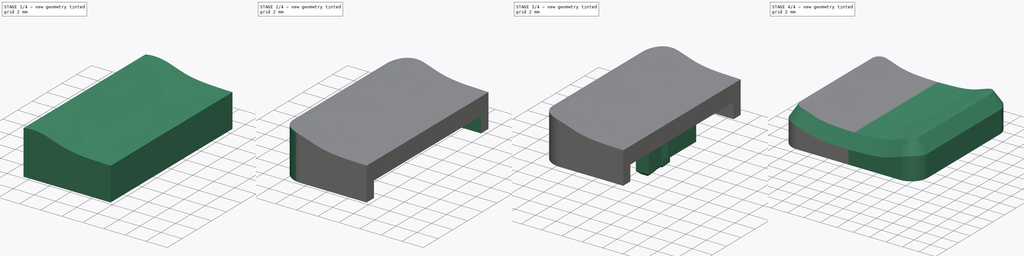
[diagram: build sequence overview — one tinted view per stage of 4, left to right]
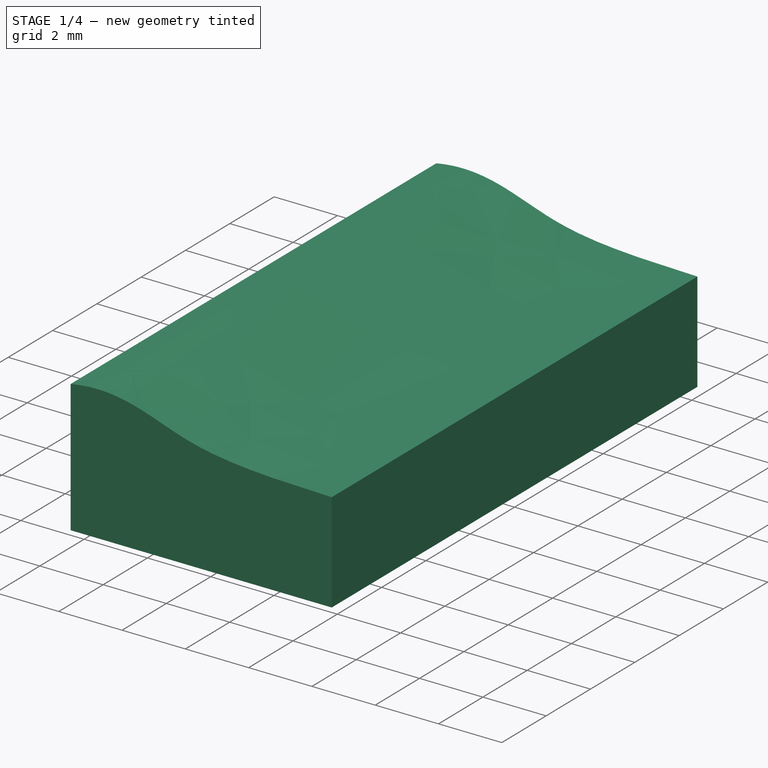
[diagram: stage 1 of 4 — iso view after this stage's code; geometry added in this stage tinted green]
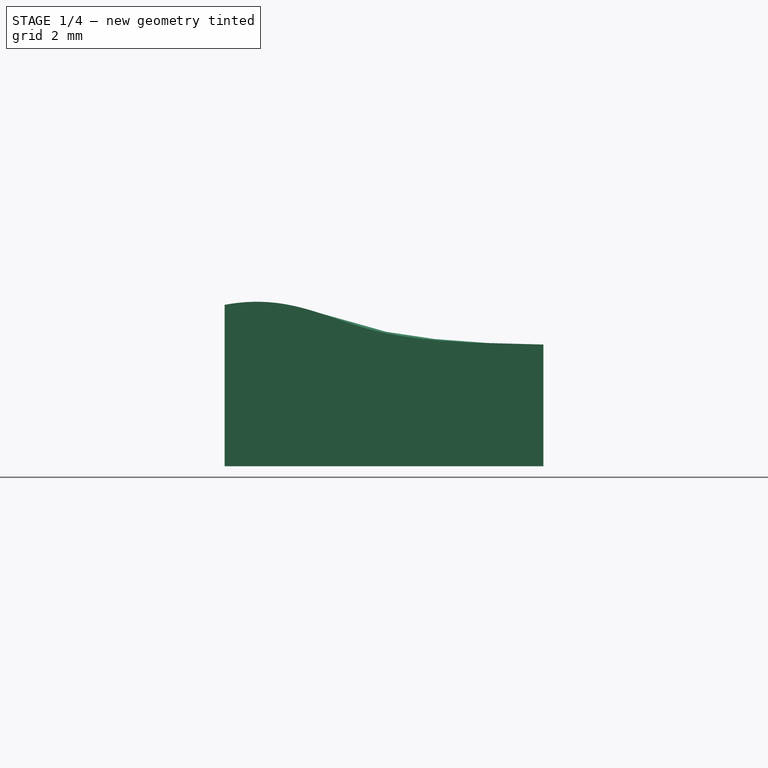
[diagram: stage 1 of 4 — front view after this stage's code; geometry added in this stage tinted green]
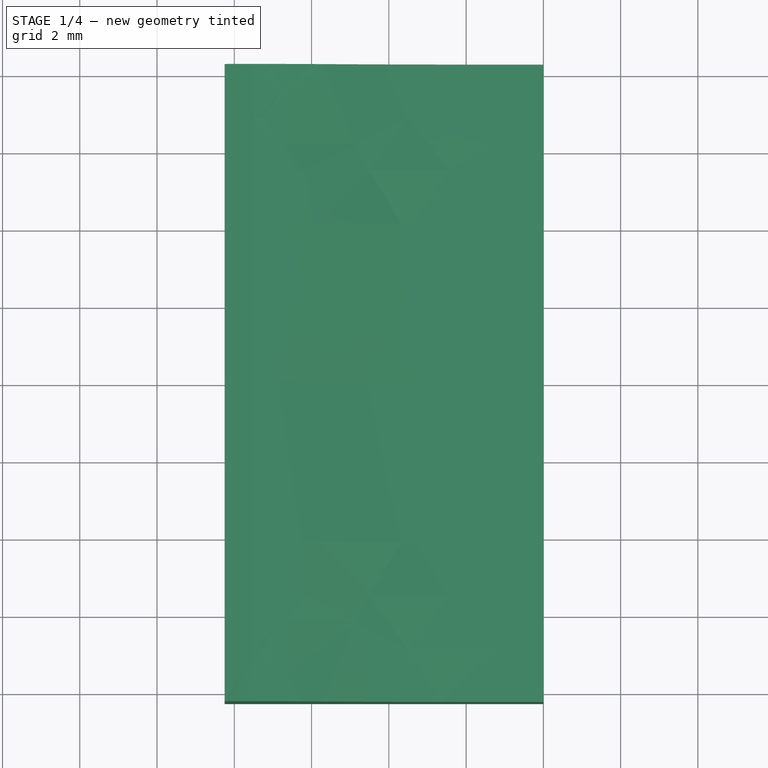
[diagram: stage 1 of 4 — top view after this stage's code; geometry added in this stage tinted green]
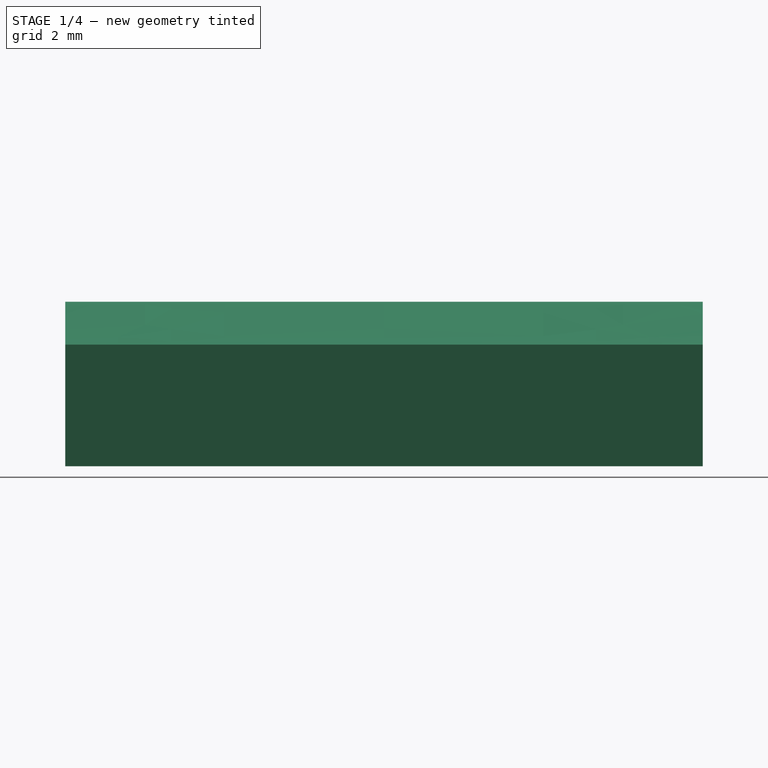
[diagram: stage 1 of 4 — right view after this stage's code; geometry added in this stage tinted green]
FCSTD DOCUMENT  (FreeCAD 0.21R33771 (Git))
Label: PLASTIC-LOW-PROFILE-KEYCAP
License: All rights reserved
LicenseURL: https://en.wikipedia.org/wiki/All_rights_reserved
objects: Sketcher::SketchObject×8, PartDesign::Pad×4, PartDesign::Pocket×2, PartDesign::Chamfer×2, PartDesign::Mirrored×1, PartDesign::Body×1
note: 26 computed .brp shape members not serialized (recipe doc carries the construction recipe); baked Part::Feature solids carry a one-line shape summary decoded from their .brp

FEATURE [Sketcher::SketchObject] Sketch
  FullyConstrained = true
  MapMode = 5
  Support = -> [XY_Plane]
  sketch-geometry (5):
    g0: LineSegment StartX=-8.25 StartY=-8.25 StartZ=0 EndX=-8.25 EndY=8.25 EndZ=0
    g1: LineSegment StartX=-8.25 StartY=8.25 StartZ=0 EndX=0 EndY=8.25 EndZ=0
    g2: LineSegment StartX=0 StartY=-8.25 StartZ=0 EndX=-8.25 EndY=-8.25 EndZ=0
    g3: GeomPoint X=0 Y=-1e-16 Z=0
    g4: LineSegment StartX=0 StartY=8.25 StartZ=0 EndX=0 EndY=-8.25 EndZ=0
  constraints (12):
    c: Horizontal(g2)
    c: Vertical(g0)
    c: Coincident(g3,g-1)
    c: Vertical(g4)
    c: Coincident(g1,g4)
    c: Coincident(g2,g4)
    c: Horizontal(g1)
    c: Symmetric(g2,g1,g3)
    c: DistanceY(g4,g4) = 16.5
    c: DistanceX(g0,g1) = 8.25
    c: Coincident(g0,g2)
    c: Coincident(g0,g1)
FEATURE [PartDesign::Pad] Pad
  Direction = (0,0,1)
  Length = 2.85
  Length2 = 10
  Profile = -> Sketch
  ReferenceAxis = -> Sketch [N_Axis]
  Refine = true
  Type = 0
FEATURE [Sketcher::SketchObject] Sketch001
  FullyConstrained = false
  MapMode = 5
  Placement = pos=(0,0,0) rot=(1,0,0;1.5708rad)
  Support = -> [XZ_Plane]
  sketch-geometry (12):
    g0: LineSegment StartX=-8.25 StartY=2.85 StartZ=0 EndX=0 EndY=2.85 EndZ=0
    g1: LineSegment StartX=0 StartY=3.15 StartZ=0 EndX=0 EndY=2.85 EndZ=0
    g2: LineSegment StartX=-8.25 StartY=2.85 StartZ=0 EndX=-8.25 EndY=4.17799 EndZ=0
    g3-g7: Circle x5 (B-spline internal-alignment scaffolding for g8; pole/knot coordinates omitted)
    g8: BSplineCurve PolesCount=5 KnotsCount=3 Degree=3 IsPeriodic=0
    g9: GeomPoint X=0 Y=3.15 Z=0
    g10: GeomPoint X=-4.57867 Y=3.56599 Z=0
    g11: GeomPoint X=-8.25 Y=4.17799 Z=0
  constraints (17):
    c: Horizontal(g0)
    c: PointOnObject(g0,g-2)
    c: DistanceY(g-1,g0) = 2.85
    c: DistanceX(g0,g0) = 8.25
    c: PointOnObject(g1,g-2)
    c: Coincident(g1,g0)
    c: Coincident(g2,g0)
    c: Vertical(g2)
    c: DistanceY(g1,g1) = 0.3
    c: Weight(g3) = 1
    c: Coincident(g8,g1)
    c: Equal(g3, g4-g7) x4
    c: Coincident(g8,g2)
    c: InternalAlignment(g3-g7 -> g8) x5
    c: InternalAlignment(g9,g8)
    c: InternalAlignment(g10,g8)
    c: InternalAlignment(g11,g8)
FEATURE [PartDesign::Pad] Pad001
  BaseFeature = -> Pad
  Direction = (0,-1,-2e-16)
  Length = 16.5
  Length2 = 10
  Midplane = true
  Profile = -> Sketch001
  ReferenceAxis = -> Sketch001 [N_Axis]
  Refine = true
  Type = 0
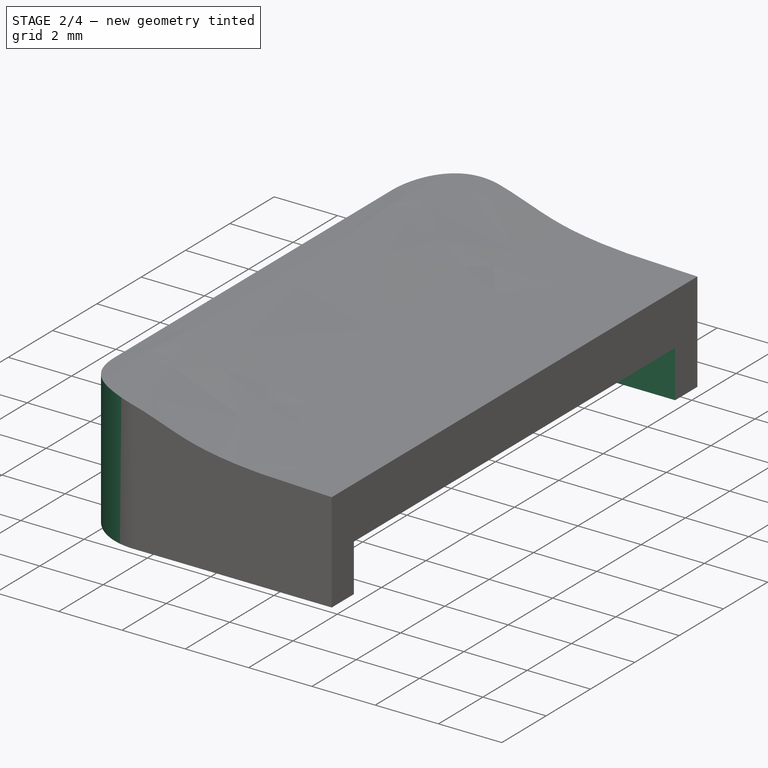
[diagram: stage 2 of 4 — iso view after this stage's code; geometry added in this stage tinted green]
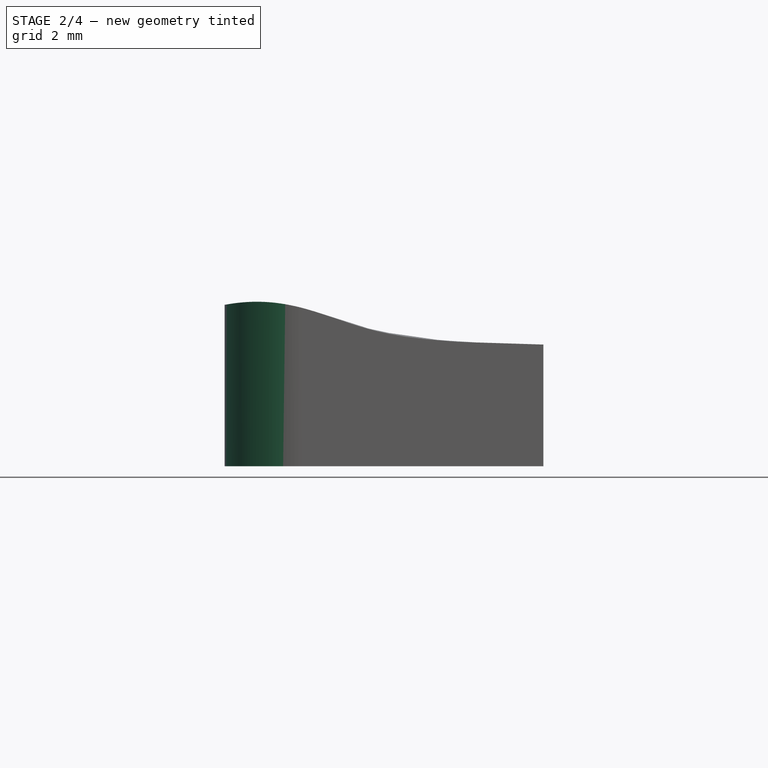
[diagram: stage 2 of 4 — front view after this stage's code; geometry added in this stage tinted green]
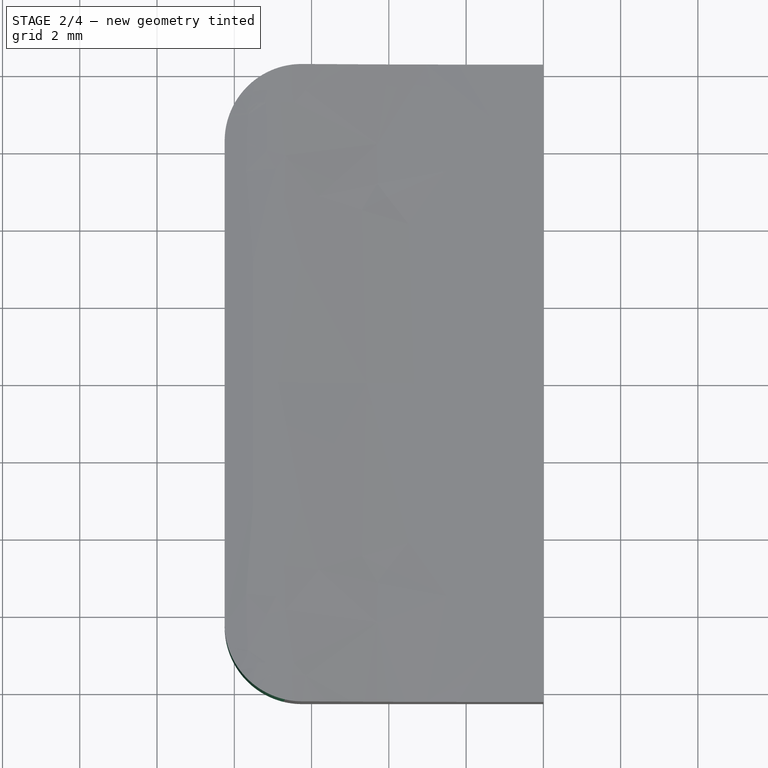
[diagram: stage 2 of 4 — top view after this stage's code; geometry added in this stage tinted green]
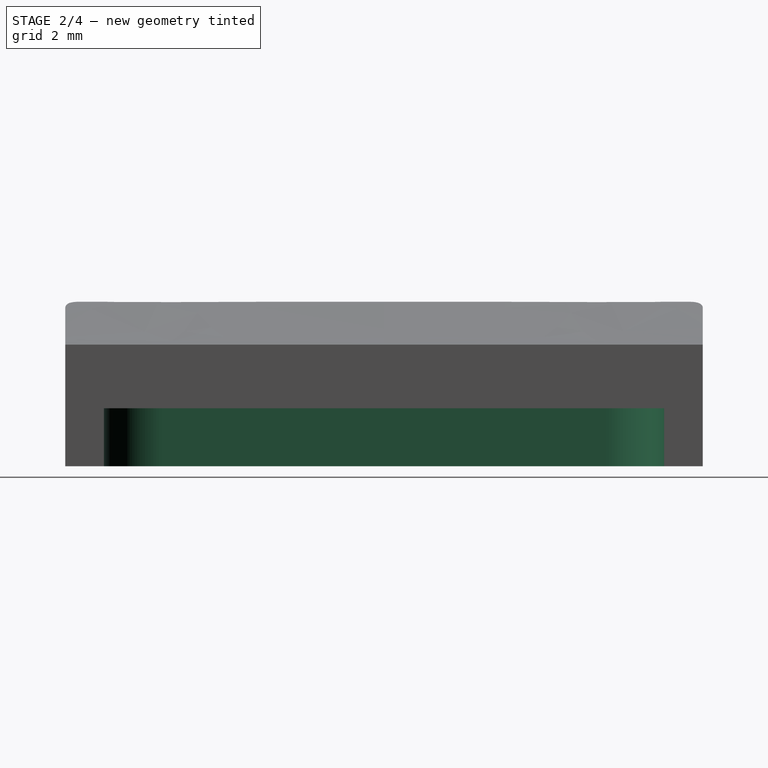
[diagram: stage 2 of 4 — right view after this stage's code; geometry added in this stage tinted green]
FEATURE [Sketcher::SketchObject] Sketch002
  FullyConstrained = true
  MapMode = 5
  Support = -> [XY_Plane]
  sketch-geometry (14):
    g0: LineSegment StartX=0 StartY=8.25 StartZ=0 EndX=-6.25 EndY=8.25 EndZ=0
    g1: LineSegment StartX=-8.25 StartY=6.25 StartZ=0 EndX=-8.25 EndY=-6.25 EndZ=0
    g2: LineSegment StartX=-6.25 StartY=-8.25 StartZ=0 EndX=0 EndY=-8.25 EndZ=0
    g3: LineSegment StartX=0 StartY=-8.25 StartZ=0 EndX=0 EndY=8.25 EndZ=0
    g4: ArcOfCircle CenterX=-6.25 CenterY=6.25 CenterZ=0 NormalX=0 NormalY=0 NormalZ=1 AngleXU=0 Radius=2 StartAngle=1.5708 EndAngle=3.14159
    g5: ArcOfCircle CenterX=-6.25 CenterY=-6.25 CenterZ=0 NormalX=0 NormalY=0 NormalZ=1 AngleXU=0 Radius=2 StartAngle=3.14159 EndAngle=4.71239
    g6: LineSegment StartX=-6.25 StartY=8.25 StartZ=0 EndX=-6.25 EndY=9.25 EndZ=0
    g7: LineSegment StartX=-8.25 StartY=6.25 StartZ=0 EndX=-9.25 EndY=6.25 EndZ=0
    g8: LineSegment StartX=-9.25 StartY=6.25 StartZ=0 EndX=-9.25 EndY=9.25 EndZ=0
    g9: LineSegment StartX=-9.25 StartY=9.25 StartZ=0 EndX=-6.25 EndY=9.25 EndZ=0
    g10: LineSegment StartX=-8.25 StartY=-6.25 StartZ=0 EndX=-9.25 EndY=-6.25 EndZ=0
    g11: LineSegment StartX=-6.25 StartY=-8.25 StartZ=0 EndX=-6.25 EndY=-9.25 EndZ=0
    g12: LineSegment StartX=-9.25 StartY=-6.25 StartZ=0 EndX=-9.25 EndY=-9.25 EndZ=0
    g13: LineSegment StartX=-9.25 StartY=-9.25 StartZ=0 EndX=-6.25 EndY=-9.25 EndZ=0
  constraints (37):
    c: Coincident(g2,g3)
    c: Coincident(g3,g0)
    c: Horizontal(g0)
    c: Horizontal(g2)
    c: Vertical(g1)
    c: Vertical(g3)
    c: Symmetric(g0,g2,g-1)
    c: Tangent(g0,g4) = -1.5708
    c: Tangent(g1,g4) = -1.5708
    c: Tangent(g1,g5) = -1.5708
    c: Tangent(g2,g5) = -1.5708
    c: Equal(g4,g5)
    c: Diameter(g4) = 4
    c: DistanceY(g3,g3) = 16.5
    c: DistanceX(g1,g0) = 8.25
    c: Coincident(g6,g4)
    c: Coincident(g7,g4)
    c: Coincident(g8,g7)
    c: Vertical(g8)
    c: Coincident(g9,g8)
    c: Coincident(g9,g6)
    c: Coincident(g10,g5)
    c: Horizontal(g10)
    c: Coincident(g11,g5)
    c: Coincident(g12,g10)
    c: Vertical(g12)
    c: Coincident(g13,g11)
    c: Horizontal(g13)
    c: Coincident(g12,g13)
    c: Vertical(g11)
    c: Horizontal(g9)
    c: Vertical(g6)
    c: Horizontal(g7)
    c: Equal(g6,g7)
    c: Equal(g7,g11)
    c: Equal(g11,g10)
    c: DistanceX(g7,g7) = 1
FEATURE [PartDesign::Pocket] Pocket
  BaseFeature = -> Pad001
  Direction = (0,0,-1)
  Length = 5
  Length2 = 5
  Profile = -> Sketch002
  ReferenceAxis = -> Sketch002 [N_Axis]
  Refine = true
  Reversed = true
  Type = 0
FEATURE [Sketcher::SketchObject] Sketch003
  FullyConstrained = true
  MapMode = 5
  Support = -> [XY_Plane]
  sketch-geometry (7):
    g0: LineSegment StartX=0 StartY=7.25 StartZ=0 EndX=-5.75 EndY=7.25 EndZ=0
    g1: LineSegment StartX=-7.25 StartY=5.75 StartZ=0 EndX=-7.25 EndY=-5.75 EndZ=0
    g2: LineSegment StartX=-5.75 StartY=-7.25 StartZ=0 EndX=0 EndY=-7.25 EndZ=0
    g3: LineSegment StartX=0 StartY=-7.25 StartZ=0 EndX=0 EndY=0 EndZ=0
    g4: ArcOfCircle CenterX=-5.75 CenterY=5.75 CenterZ=0 NormalX=0 NormalY=0 NormalZ=1 AngleXU=0 Radius=1.5 StartAngle=1.5708 EndAngle=3.14159
    g5: ArcOfCircle CenterX=-5.75 CenterY=-5.75 CenterZ=0 NormalX=0 NormalY=0 NormalZ=1 AngleXU=0 Radius=1.5 StartAngle=3.14159 EndAngle=4.71239
    g6: LineSegment StartX=0 StartY=0 StartZ=0 EndX=0 EndY=7.25 EndZ=0
  constraints (17):
    c: Coincident(g2,g3)
    c: Coincident(g6,g0)
    c: Horizontal(g0)
    c: Horizontal(g2)
    c: Vertical(g1)
    c: Vertical(g3)
    c: Symmetric(g0,g2,g-1)
    c: Tangent(g0,g4) = -1.5708
    c: Tangent(g1,g4) = -1.5708
    c: Tangent(g1,g5) = -1.5708
    c: Tangent(g2,g5) = -1.5708
    c: Equal(g4,g5)
    c: Diameter(g4) = 3
    c: DistanceX(g1,g0) = 7.25
    c: DistanceY(g3,g6) = 14.5
    c: Coincident(g3,g6)
    c: Coincident(g3,g-1)
FEATURE [PartDesign::Pocket] Pocket001
  BaseFeature = -> Pocket
  Direction = (0,0,-1)
  Length = 1.5
  Length2 = 5
  Profile = -> Sketch003
  ReferenceAxis = -> Sketch003 [N_Axis]
  Reversed = true
  Type = 0
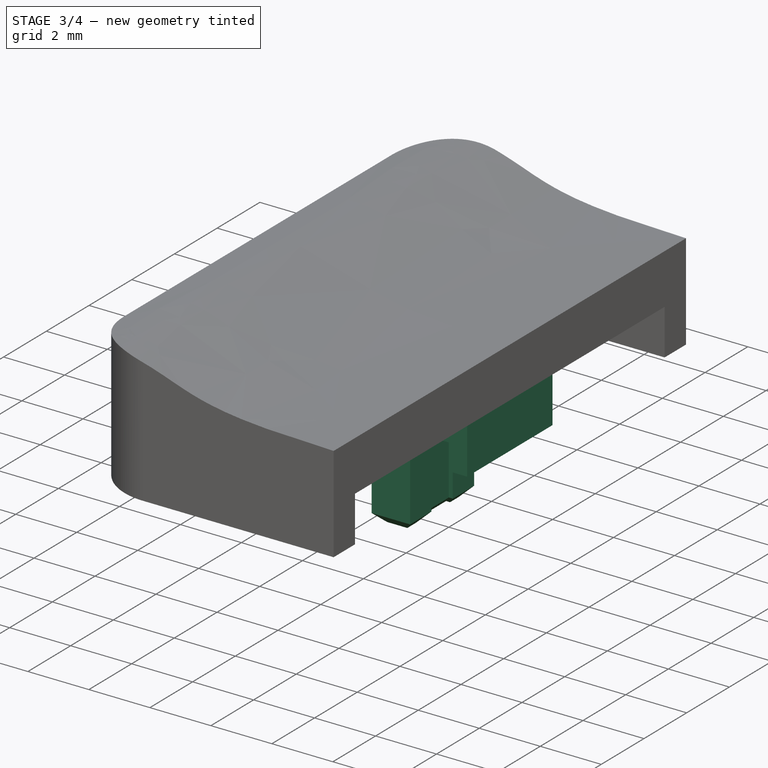
[diagram: stage 3 of 4 — iso view after this stage's code; geometry added in this stage tinted green]
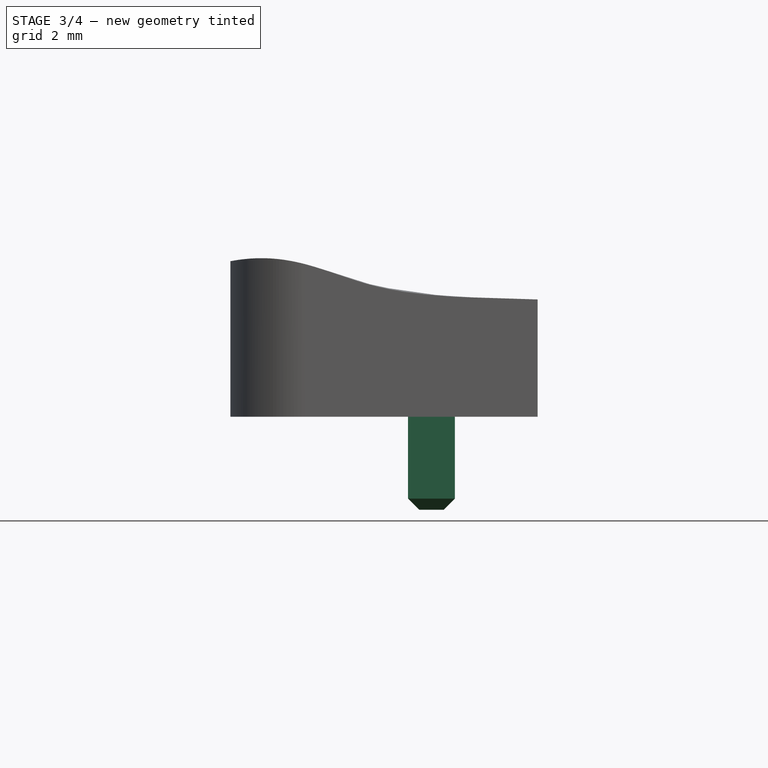
[diagram: stage 3 of 4 — front view after this stage's code; geometry added in this stage tinted green]
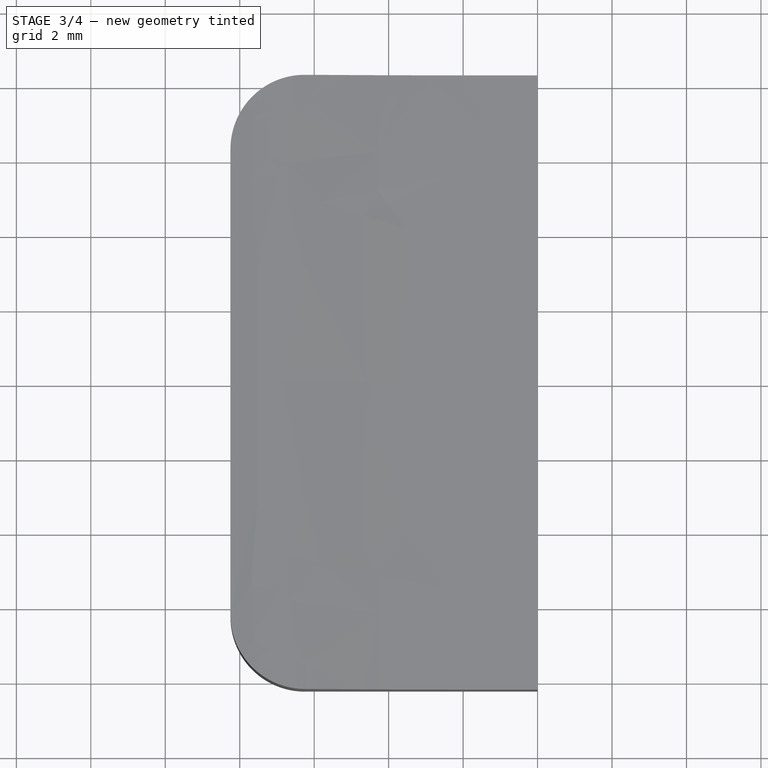
[diagram: stage 3 of 4 — top view after this stage's code; geometry added in this stage tinted green]
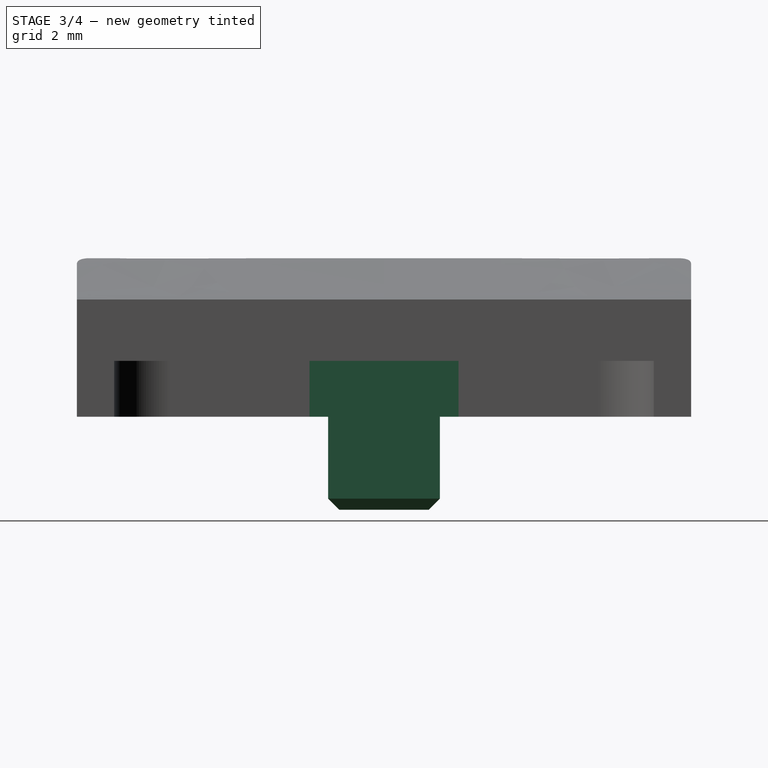
[diagram: stage 3 of 4 — right view after this stage's code; geometry added in this stage tinted green]
FEATURE [Sketcher::SketchObject] Sketch004
  FullyConstrained = true
  MapMode = 5
  Support = -> [XY_Plane]
  sketch-geometry (12):
    g0: LineSegment StartX=0 StartY=-2 StartZ=0 EndX=-0.5 EndY=-2 EndZ=0
    g1: LineSegment StartX=-0.5 StartY=-2 StartZ=0 EndX=-0.5 EndY=-0.5 EndZ=0
    g2: LineSegment StartX=-0.5 StartY=2 StartZ=0 EndX=0 EndY=2 EndZ=0
    g3: LineSegment StartX=0 StartY=2 StartZ=0 EndX=0 EndY=-2 EndZ=0
    g4: LineSegment StartX=-3.5 StartY=-2 StartZ=0 EndX=-4.5 EndY=-2 EndZ=0
    g5: LineSegment StartX=-4.5 StartY=-2 StartZ=0 EndX=-4.5 EndY=2 EndZ=0
    g6: LineSegment StartX=-4.5 StartY=2 StartZ=0 EndX=-3.5 EndY=2 EndZ=0
    g7: LineSegment StartX=-3.5 StartY=2 StartZ=0 EndX=-3.5 EndY=0.5 EndZ=0
    g8: LineSegment StartX=-3.5 StartY=-0.5 StartZ=0 EndX=-0.5 EndY=-0.5 EndZ=0
    g9: LineSegment StartX=-3.5 StartY=0.5 StartZ=0 EndX=-0.5 EndY=0.5 EndZ=0
    g10: LineSegment StartX=-3.5 StartY=-0.5 StartZ=0 EndX=-3.5 EndY=-2 EndZ=0
    g11: LineSegment StartX=-0.5 StartY=0.5 StartZ=0 EndX=-0.5 EndY=2 EndZ=0
  constraints (34):
    c: Coincident(g0,g1)
    c: Coincident(g11,g2)
    c: Coincident(g2,g3)
    c: Coincident(g3,g0)
    c: Horizontal(g0)
    c: Horizontal(g2)
    c: Vertical(g1)
    c: Vertical(g3)
    c: Coincident(g4,g5)
    c: Coincident(g5,g6)
    c: Coincident(g6,g7)
    c: Coincident(g10,g4)
    c: Horizontal(g4)
    c: Horizontal(g6)
    c: Vertical(g5)
    c: Vertical(g7)
    c: Horizontal(g4,g0)
    c: Symmetric(g0,g2,g-1)
    c: Horizontal(g8)
    c: Horizontal(g9)
    c: Coincident(g7,g9)
    c: Coincident(g10,g8)
    c: Coincident(g1,g8)
    c: Coincident(g11,g9)
    c: DistanceX(g0,g0) = 0.5
    c: Vertical(g9,g1)
    c: Vertical(g11)
    c: DistanceX(g4,g4) = 1
    c: Vertical(g10)
    c: DistanceY(g8,g7) = 1
    c: Symmetric(g8,g7,g-1)
    c: DistanceX(g4,g-1) = 4.5
    c: Horizontal(g6,g2)
    c: DistanceY(g5,g5) = 4
FEATURE [PartDesign::Pad] Pad002
  BaseFeature = -> Pocket001
  Direction = (0,0,1)
  Length = 10
  Length2 = 10
  Profile = -> Sketch004
  ReferenceAxis = -> Sketch004 [N_Axis]
  Type = 2
FEATURE [Sketcher::SketchObject] Sketch005
  FullyConstrained = true
  MapMode = 5
  Support = -> [XY_Plane]
  sketch-geometry (13):
    g0: LineSegment StartX=-2.22 StartY=-1.5 StartZ=0 EndX=-3.48 EndY=-1.5 EndZ=0
    g1: LineSegment StartX=-3.48 StartY=-1.5 StartZ=0 EndX=-3.48 EndY=-0.5 EndZ=0
    g2: LineSegment StartX=-3.48 StartY=-0.5 StartZ=0 EndX=-3.35 EndY=-0.5 EndZ=0
    g3: LineSegment StartX=-2.22 StartY=-0.5 StartZ=0 EndX=-2.22 EndY=-1.5 EndZ=0
    g4: LineSegment StartX=-2.22 StartY=0.5 StartZ=0 EndX=-2.35 EndY=0.5 EndZ=0
    g5: LineSegment StartX=-3.48 StartY=0.5 StartZ=0 EndX=-3.48 EndY=1.5 EndZ=0
    g6: LineSegment StartX=-3.48 StartY=1.5 StartZ=0 EndX=-2.22 EndY=1.5 EndZ=0
    g7: LineSegment StartX=-2.22 StartY=1.5 StartZ=0 EndX=-2.22 EndY=0.5 EndZ=0
    g8: LineSegment StartX=-2.35 StartY=-0.5 StartZ=0 EndX=-2.35 EndY=0.5 EndZ=0
    g9: LineSegment StartX=-3.35 StartY=-0.5 StartZ=0 EndX=-3.35 EndY=0.5 EndZ=0
    g10: LineSegment StartX=-2.35 StartY=-0.5 StartZ=0 EndX=-2.22 EndY=-0.5 EndZ=0
    g11: LineSegment StartX=-3.35 StartY=0.5 StartZ=0 EndX=-3.48 EndY=0.5 EndZ=0
    g12: GeomPoint X=-2.85 Y=-1.5 Z=0
  constraints (36):
    c: Coincident(g0,g1)
    c: Coincident(g1,g2)
    c: Coincident(g10,g3)
    c: Coincident(g3,g0)
    c: Horizontal(g0)
    c: Horizontal(g2)
    c: Vertical(g1)
    c: Vertical(g3)
    c: Coincident(g11,g5)
    c: Coincident(g5,g6)
    c: Coincident(g6,g7)
    c: Coincident(g7,g4)
    c: Horizontal(g4)
    c: Horizontal(g6)
    c: Vertical(g5)
    c: Vertical(g7)
    c: Vertical(g8)
    c: Vertical(g1,g11)
    c: Vertical(g10,g4)
    c: Coincident(g2,g9)
    c: Coincident(g10,g8)
    c: Coincident(g4,g8)
    c: Coincident(g11,g9)
    c: Equal(g2,g10)
    c: Equal(g1,g5)
    c: Symmetric(g2,g9,g-1)
    c: Horizontal(g11)
    c: Horizontal(g2,g8)
    c: Horizontal(g4,g9)
    c: Horizontal(g10)
    c: Symmetric(g0,g0,g12)
    c: DistanceX(g12,g-1) = 2.85
    c: DistanceX(g0,g0) = 1.26
    c: DistanceX(g2,g8) = 1
    c: DistanceY(g0,g5) = 3
    c: DistanceY(g1,g1) = 1
FEATURE [PartDesign::Pad] Pad003
  BaseFeature = -> Pad002
  Direction = (0,0,1)
  Length = 1.5
  Length2 = 2.5
  Profile = -> Sketch005
  ReferenceAxis = -> Sketch005 [N_Axis]
  Type = 4
FEATURE [PartDesign::Chamfer] Chamfer
  Angle = 45
  Base = -> Pad003 [Edge101,Edge99,Edge111,Edge112,Edge113,Edge82,Edge79,Edge77,Edge109,Edge106,Edge110,Edge104]
  BaseFeature = -> Pad003
  ChamferType = 0
  FlipDirection = false
  Size = 0.3
  Size2 = 1
  SupportTransform = false
  UseAllEdges = false
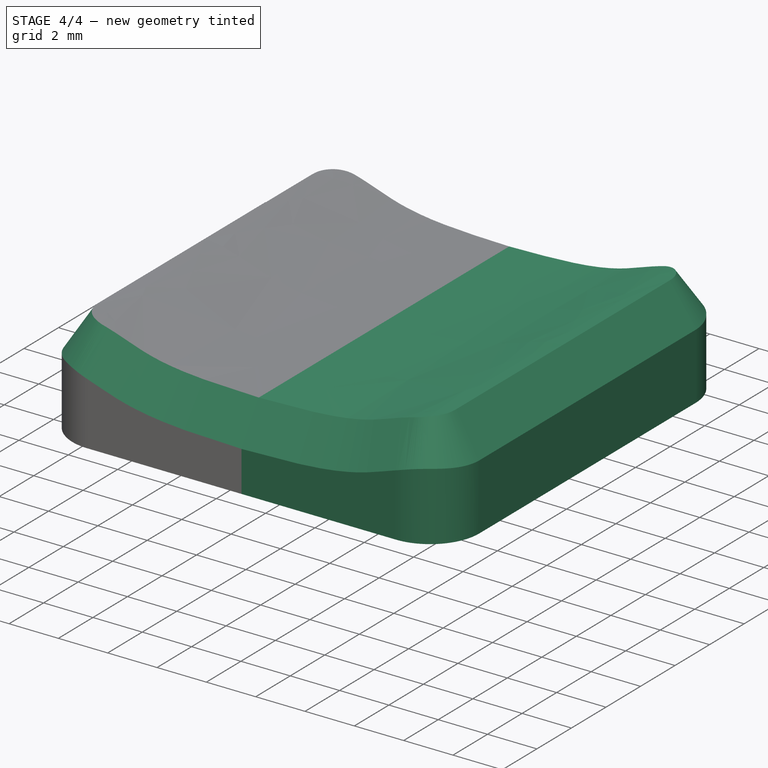
[diagram: stage 4 of 4 — iso view after this stage's code; geometry added in this stage tinted green]
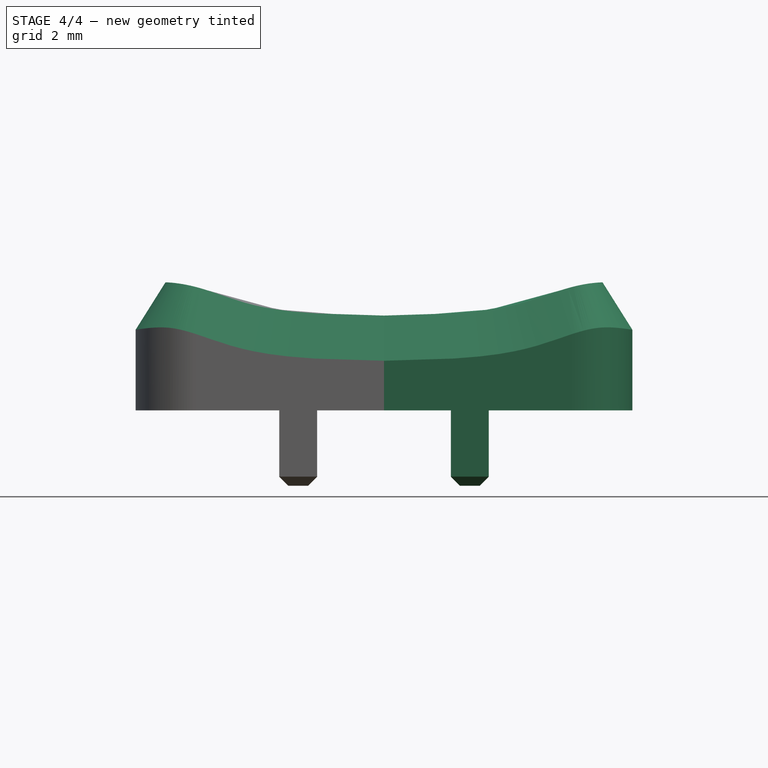
[diagram: stage 4 of 4 — front view after this stage's code; geometry added in this stage tinted green]
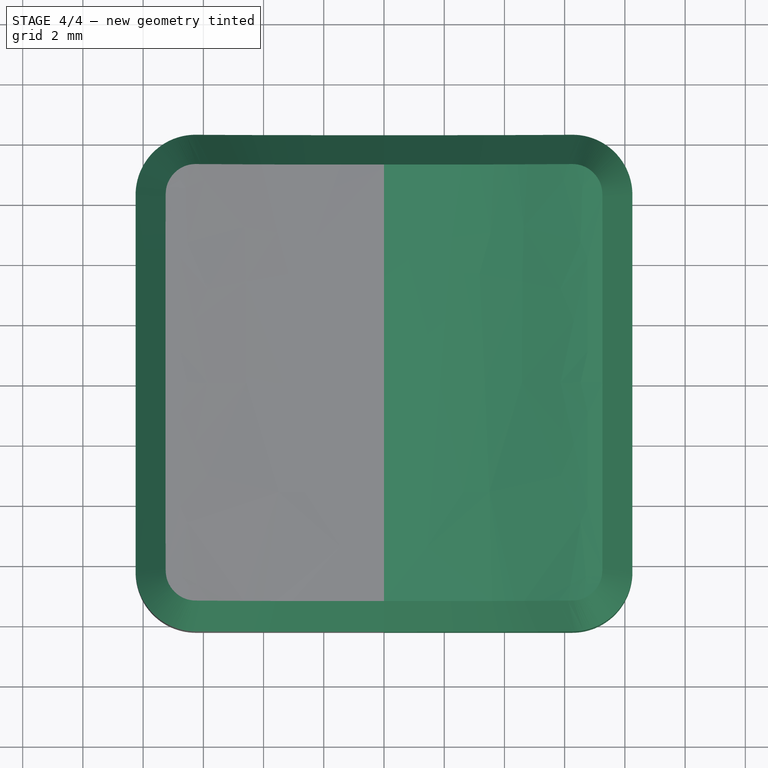
[diagram: stage 4 of 4 — top view after this stage's code; geometry added in this stage tinted green]
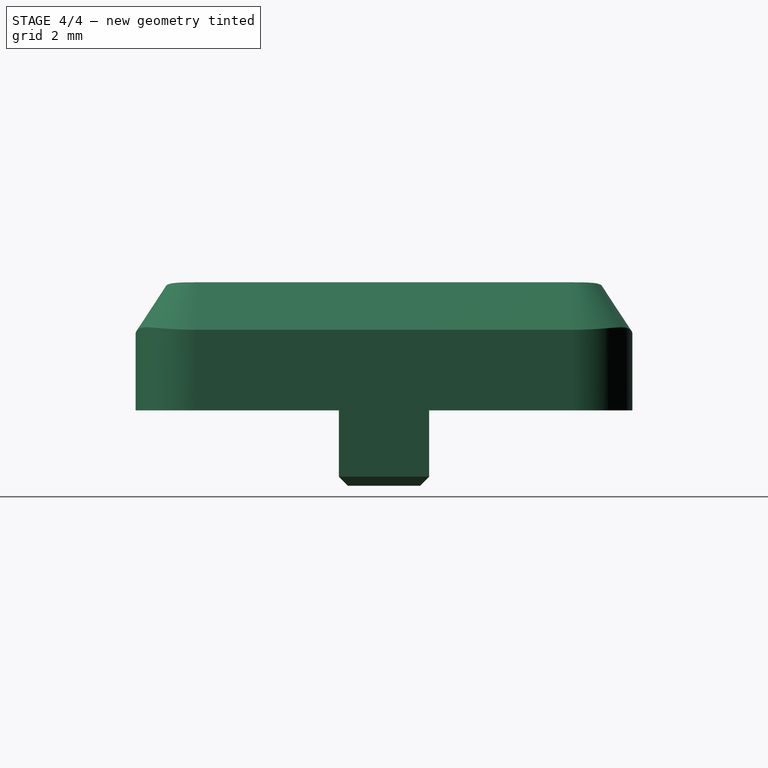
[diagram: stage 4 of 4 — right view after this stage's code; geometry added in this stage tinted green]
FEATURE [Sketcher::SketchObject] Sketch006
  FullyConstrained = false
  MapMode = 5
  Placement = pos=(0,0,0) rot=(1,0,0;1.5708rad)
  Support = -> [XZ_Plane]
  sketch-geometry (30):
    g0: LineSegment StartX=-15 StartY=-2.3 StartZ=0 EndX=-15 EndY=-1.3 EndZ=0
    g1: LineSegment StartX=-15 StartY=-1.3 StartZ=0 EndX=15 EndY=-1.3 EndZ=0
    g2: LineSegment StartX=15 StartY=-1.3 StartZ=0 EndX=15 EndY=-2.3 EndZ=0
    g3: LineSegment StartX=15 StartY=-2.3 StartZ=0 EndX=-15 EndY=-2.3 EndZ=0
    g4: GeomPoint X=0 Y=-1.8 Z=0
    g5: LineSegment StartX=-15 StartY=-12.4 StartZ=0 EndX=-15 EndY=-10.8 EndZ=0
    g6: LineSegment StartX=-15 StartY=-10.8 StartZ=0 EndX=15 EndY=-10.8 EndZ=0
    g7: LineSegment StartX=15 StartY=-10.8 StartZ=0 EndX=15 EndY=-12.4 EndZ=0
    g8: LineSegment StartX=15 StartY=-12.4 StartZ=0 EndX=-15 EndY=-12.4 EndZ=0
    g9: GeomPoint X=0 Y=-11.6 Z=0
    g10: LineSegment StartX=-7.5 StartY=-8 StartZ=0 EndX=-7.5 EndY=-3 EndZ=0
    g11: LineSegment StartX=-7.5 StartY=-3 StartZ=0 EndX=7.5 EndY=-3 EndZ=0
    g12: LineSegment StartX=7.5 StartY=-3 StartZ=0 EndX=7.5 EndY=-8 EndZ=0
    g13: LineSegment StartX=7.5 StartY=-8 StartZ=0 EndX=-7.5 EndY=-8 EndZ=0
    g14: GeomPoint X=0 Y=-5.5 Z=0
    g15: LineSegment StartX=-11.0572 StartY=-9 StartZ=0 EndX=-11.0572 EndY=-8 EndZ=0
    g16: LineSegment StartX=-11.0572 StartY=-8 StartZ=0 EndX=11.0572 EndY=-8 EndZ=0
    g17: LineSegment StartX=11.0572 StartY=-8 StartZ=0 EndX=11.0572 EndY=-9 EndZ=0
    g18: GeomPoint X=0 Y=-8.5 Z=0
    g19: LineSegment StartX=-11.0572 StartY=-9 StartZ=0 EndX=11.0572 EndY=-9 EndZ=0
    g20: LineSegment StartX=-3.7807 StartY=-10.8 StartZ=0 EndX=-3.7807 EndY=-9 EndZ=0
    g21: LineSegment StartX=-3.7807 StartY=-9 StartZ=0 EndX=3.7807 EndY=-9 EndZ=0
    g22: LineSegment StartX=3.7807 StartY=-9 StartZ=0 EndX=3.7807 EndY=-10.8 EndZ=0
    g23: LineSegment StartX=3.7807 StartY=-10.8 StartZ=0 EndX=-3.7807 EndY=-10.8 EndZ=0
    g24: GeomPoint X=0 Y=-9.9 Z=0
    g25: LineSegment StartX=-5.52707 StartY=-3 StartZ=0 EndX=-5.52707 EndY=0 EndZ=0
    g26: LineSegment StartX=-5.52707 StartY=0 StartZ=0 EndX=5.52707 EndY=0 EndZ=0
    g27: LineSegment StartX=5.52707 StartY=0 StartZ=0 EndX=5.52707 EndY=-3 EndZ=0
    g28: LineSegment StartX=5.52707 StartY=-3 StartZ=0 EndX=-5.52707 EndY=-3 EndZ=0
    g29: GeomPoint X=0 Y=-1.5 Z=0
  constraints (75):
    c: Coincident(g0,g1)
    c: Coincident(g1,g2)
    c: Coincident(g2,g3)
    c: Coincident(g3,g0)
    c: Horizontal(g1)
    c: Horizontal(g3)
    c: Vertical(g0)
    c: Vertical(g2)
    c: Symmetric(g1,g0,g4)
    c: PointOnObject(g4,g-2)
    c: Coincident(g5,g6)
    c: Coincident(g6,g7)
    c: Coincident(g7,g8)
    c: Coincident(g8,g5)
    c: Horizontal(g6)
    c: Horizontal(g8)
    c: Vertical(g5)
    c: Vertical(g7)
    c: Symmetric(g6,g5,g9)
    c: PointOnObject(g9,g-2)
    c: DistanceY(g7,g7) = 1.6
    c: DistanceY(g2,g2) = 1
    c: Equal(g3,g6)
    c: DistanceX(g8,g8) = 30
    c: DistanceY(g6,g2) = 8.5
    c: DistanceY(g5,g-1) = 10.8
    c: Coincident(g10,g11)
    c: Coincident(g11,g12)
    c: Coincident(g12,g13)
    c: Coincident(g13,g10)
    c: Horizontal(g11)
    c: Horizontal(g13)
    c: Vertical(g10)
    c: Vertical(g12)
    c: Symmetric(g11,g10,g14)
    c: PointOnObject(g14,g-2)
    c: DistanceY(g12,g12) = 5
    c: DistanceX(g13,g13) = 15
    c: Coincident(g15,g16)
    c: Coincident(g16,g17)
    c: Horizontal(g16)
    c: Vertical(g15)
    c: Vertical(g17)
    c: Symmetric(g16,g15,g18)
    c: PointOnObject(g18,g-2)
    c: PointOnObject(g12,g16)
    c: DistanceY(g17,g17) = 1
    c: Coincident(g19,g15)
    c: Coincident(g19,g17)
    c: Horizontal(g19)
    c: Coincident(g20,g21)
    c: Coincident(g21,g22)
    c: Coincident(g22,g23)
    c: Coincident(g23,g20)
    c: Horizontal(g21)
    c: Horizontal(g23)
    c: Vertical(g20)
    c: Vertical(g22)
    c: Symmetric(g21,g20,g24)
    c: PointOnObject(g24,g-2)
    c: DistanceY(g22,g22) = 1.8
    c: PointOnObject(g21,g19)
    c: PointOnObject(g22,g6)
    c: Coincident(g25,g26)
    c: Coincident(g26,g27)
    c: Coincident(g27,g28)
    c: Coincident(g28,g25)
    c: Horizontal(g26)
    c: Horizontal(g28)
    c: Vertical(g25)
    c: Vertical(g27)
    c: Symmetric(g26,g25,g29)
    c: PointOnObject(g29,g-2)
    c: PointOnObject(g26,g-1)
    c: PointOnObject(g27,g11)
FEATURE [Sketcher::SketchObject] Sketch007
  FullyConstrained = false
  MapMode = 5
  Placement = pos=(0,0,0) rot=(1,0,0;1.5708rad)
  Support = -> [XZ_Plane]
  sketch-geometry (14):
    g0: LineSegment StartX=-8.25 StartY=2.85 StartZ=0 EndX=0 EndY=2.85 EndZ=0
    g1-g6: Circle x6 (B-spline internal-alignment scaffolding for g7; pole/knot coordinates omitted)
    g7: BSplineCurve PolesCount=6 KnotsCount=4 Degree=3 IsPeriodic=0
    g8-g11: GeomPoint x4 (B-spline internal-alignment scaffolding for g7; pole/knot coordinates omitted)
    g12: GeomPoint X=-7.09131 Y=3.79 Z=0
    g13: LineSegment StartX=0 StartY=2.94891 StartZ=0 EndX=0 EndY=2.85 EndZ=0
  constraints (14):
    c: Horizontal(g0)
    c: PointOnObject(g0,g-2)
    c: DistanceY(g-1,g0) = 2.85
    c: DistanceX(g0,g0) = 8.25
    c: Weight(g1) = 1
    c: Coincident(g7,g0)
    c: Equal(g1, g2-g6) x5
    c: PointOnObject(g7,g-2)
    c: InternalAlignment(g1-g6 -> g7) x6
    c: InternalAlignment(g8-g11 -> g7) x4
    c: PointOnObject(g12,g7)
    c: DistanceY(g0,g12) = 0.94
    c: Coincident(g13,g7)
    c: Coincident(g13,g0)
FEATURE [PartDesign::Chamfer] Chamfer001
  Angle = 45
  Base = -> Chamfer [Edge137,Edge140,Edge139,Edge138,Edge130]
  BaseFeature = -> Chamfer
  ChamferType = 1
  FlipDirection = false
  Size = 1.5
  Size2 = 1
  SupportTransform = false
  UseAllEdges = false
FEATURE [PartDesign::Mirrored] Mirrored
  BaseFeature = -> Chamfer001
  MirrorPlane = -> Sketch [V_Axis]
  Originals = -> [Pad,Pad001,Pocket,Pocket001,Pad002,Pad003,Chamfer,Chamfer001]
FEATURE [PartDesign::Body] Body  label="PLASTIC-LOW-PROFILE-KEYCAP"
  Group = -> [Sketch,Pad,Sketch001,Pad001,Sketch002,Pocket,Sketch003,Pocket001,Sketch004,Pad002,Sketch005,Pad003,Chamfer,Sketch006,Sketch007,Chamfer001,Mirrored]
  Origin = -> Origin
  Tip = -> Mirrored
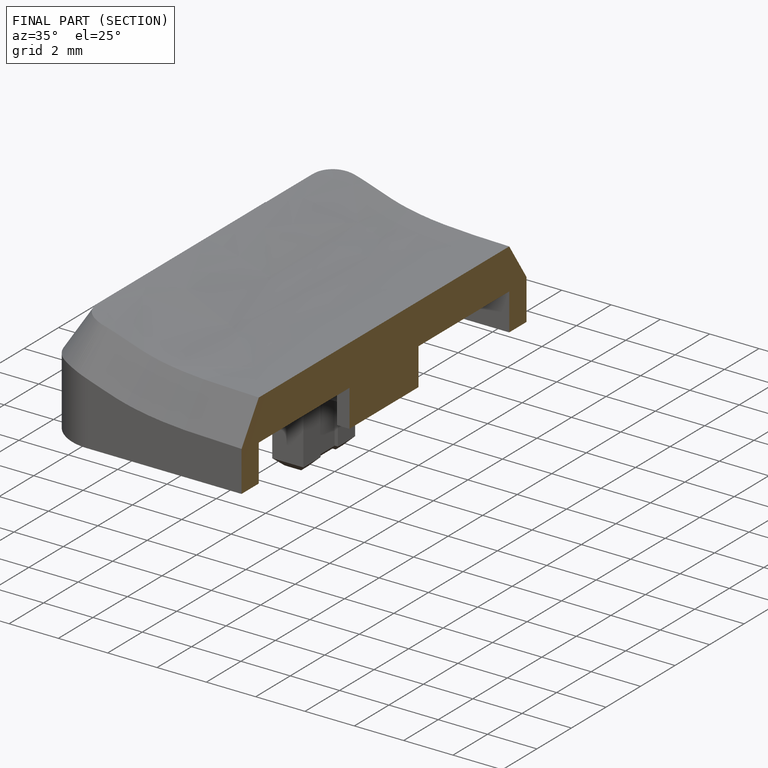
[diagram: finished part — half-section view (interior)]
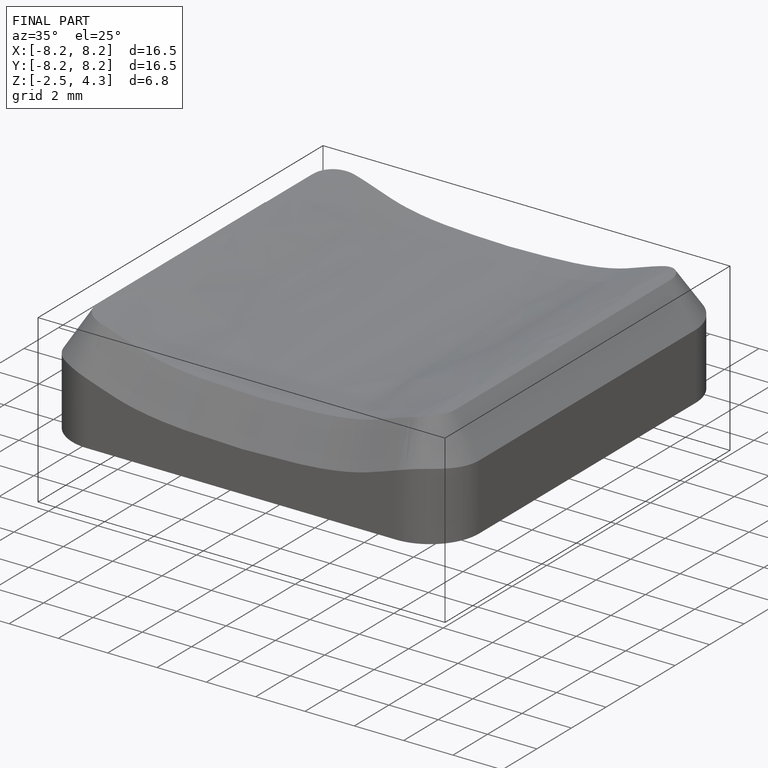
[diagram: finished part — iso view with bounding-box wireframe]
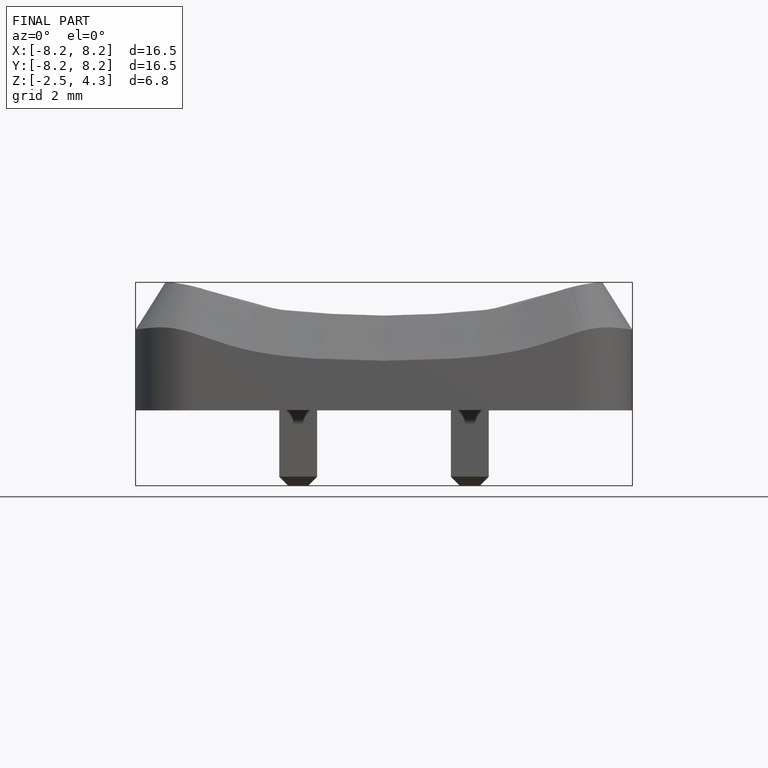
[diagram: finished part — front view with bounding-box wireframe]
